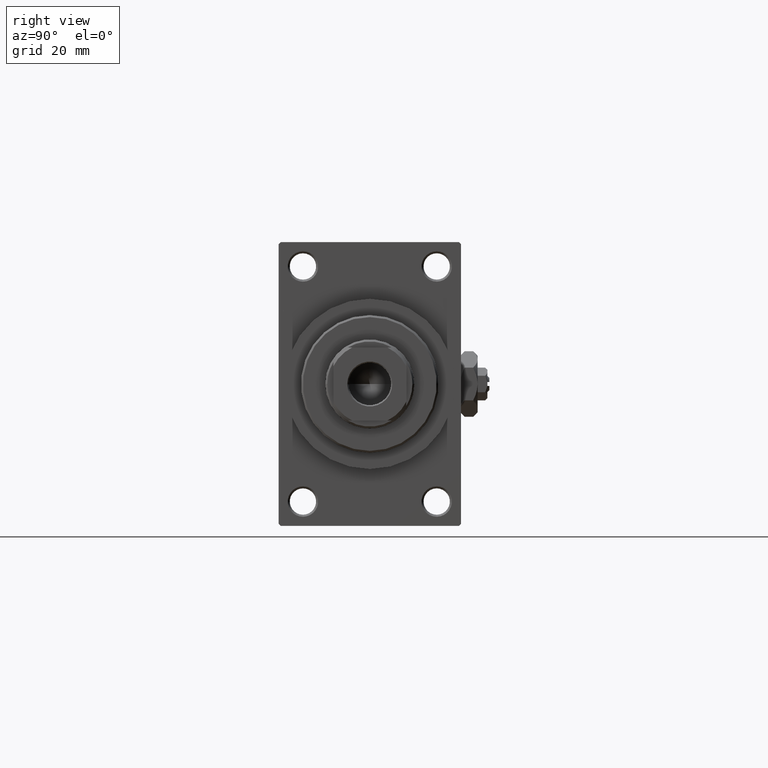
[diagram: clean part render]
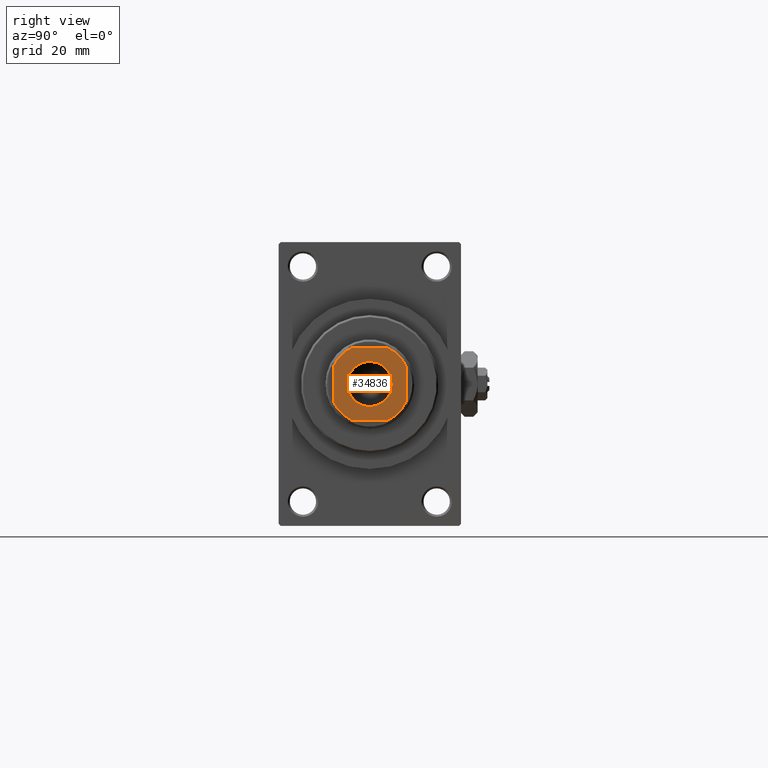
[diagram: same view with one face highlighted and labeled with its STEP entity id]
A machine part, right view. The second image highlights one B-rep face of the part: STEP entity #34836.
In plain terms, the highlighted planar face has unit normal (1, 0, 0).
Its self-contained STEP definition (entity closure, byte-faithful):
#37 = DIRECTION ( 'NONE',  ( 1.000000000000000000, 0.000000000000000000, 0.000000000000000000 ) ) ;
#1003 = LINE ( 'NONE', #3757, #27282 ) ;
#1005 = CARTESIAN_POINT ( 'NONE',  ( -9.000000000000003553, 8.999999999999998224, 123.0000000000000000 ) ) ;
#1296 = ORIENTED_EDGE ( 'NONE', *, *, #30082, .T. ) ;
#1401 = PLANE ( 'NONE',  #14253 ) ;
#1424 = VERTEX_POINT ( 'NONE', #39526 ) ;
#1468 = ORIENTED_EDGE ( 'NONE', *, *, #8844, .T. ) ;
#1906 = CARTESIAN_POINT ( 'NONE',  ( 5.550000000000013145, 0.000000000000000000, 123.0000000000000000 ) ) ;
#1967 = EDGE_CURVE ( 'NONE', #22650, #16876, #33019, .T. ) ;
#2974 = ORIENTED_EDGE ( 'NONE', *, *, #16427, .T. ) ;
#3038 = AXIS2_PLACEMENT_3D ( 'NONE', #11513, #26643, #37824 ) ;
#3076 = CIRCLE ( 'NONE', #6236, 9.999999999999998224 ) ;
#3757 = CARTESIAN_POINT ( 'NONE',  ( -9.000000000000001776, -9.000000000000001776, 123.0000000000000000 ) ) ;
#4542 = CARTESIAN_POINT ( 'NONE',  ( 8.999999999999998224, -4.358898943540672200, 123.0000000000000000 ) ) ;
#5049 = VERTEX_POINT ( 'NONE', #1906 ) ;
#5947 = CARTESIAN_POINT ( 'NONE',  ( 8.999999999999996447, 8.999999999999998224, 123.0000000000000000 ) ) ;
#6236 = AXIS2_PLACEMENT_3D ( 'NONE', #42610, #27695, #39367 ) ;
#6262 = VECTOR ( 'NONE', #18333, 1000.000000000000000 ) ;
#7033 = ORIENTED_EDGE ( 'NONE', *, *, #29931, .T. ) ;
#8844 = EDGE_CURVE ( 'NONE', #26649, #22290, #34792, .T. ) ;
#10102 = VERTEX_POINT ( 'NONE', #30226 ) ;
#10460 = VECTOR ( 'NONE', #41767, 1000.000000000000000 ) ;
#10630 = DIRECTION ( 'NONE',  ( -0.000000000000000000, 0.000000000000000000, 1.000000000000000000 ) ) ;
#11395 = CARTESIAN_POINT ( 'NONE',  ( 8.999999999999998224, 4.358898943540600257, 123.0000000000000000 ) ) ;
#11513 = CARTESIAN_POINT ( 'NONE',  ( 0.000000000000000000, 0.000000000000000000, 123.0000000000000000 ) ) ;
#11765 = CIRCLE ( 'NONE', #3038, 9.999999999999998224 ) ;
#12597 = DIRECTION ( 'NONE',  ( -0.000000000000000000, 0.000000000000000000, 1.000000000000000000 ) ) ;
#13711 = CARTESIAN_POINT ( 'NONE',  ( -9.000000000000003553, 8.999999999999998224, 123.0000000000000000 ) ) ;
#13947 = CIRCLE ( 'NONE', #19436, 5.550000000000013145 ) ;
#14253 = AXIS2_PLACEMENT_3D ( 'NONE', #46612, #12597, #20013 ) ;
#14356 = CARTESIAN_POINT ( 'NONE',  ( 0.000000000000000000, 0.000000000000000000, 123.0000000000000000 ) ) ;
#15703 = EDGE_LOOP ( 'NONE', ( #24607, #15999 ) ) ;
#15999 = ORIENTED_EDGE ( 'NONE', *, *, #22357, .T. ) ;
#16310 = FACE_OUTER_BOUND ( 'NONE', #41892, .T. ) ;
#16427 = EDGE_CURVE ( 'NONE', #43551, #28873, #47975, .T. ) ;
#16575 = CIRCLE ( 'NONE', #41975, 5.550000000000013145 ) ;
#16579 = CARTESIAN_POINT ( 'NONE',  ( 4.358898943540597593, 8.999999999999998224, 123.0000000000000000 ) ) ;
#16876 = VERTEX_POINT ( 'NONE', #11395 ) ;
#17200 = ORIENTED_EDGE ( 'NONE', *, *, #28615, .T. ) ;
#17489 = DIRECTION ( 'NONE',  ( 1.000000000000000000, 0.000000000000000000, 0.000000000000000000 ) ) ;
#17509 = DIRECTION ( 'NONE',  ( 1.000000000000000000, 0.000000000000000000, 0.000000000000000000 ) ) ;
#17994 = CARTESIAN_POINT ( 'NONE',  ( 0.000000000000000000, 0.000000000000000000, 123.0000000000000000 ) ) ;
#18333 = DIRECTION ( 'NONE',  ( -1.927470528863119049E-16, 1.000000000000000000, -0.000000000000000000 ) ) ;
#19436 = AXIS2_PLACEMENT_3D ( 'NONE', #28663, #29653, #17489 ) ;
#19992 = EDGE_CURVE ( 'NONE', #1424, #10102, #1003, .T. ) ;
#20013 = DIRECTION ( 'NONE',  ( 1.000000000000000000, 0.000000000000000000, 0.000000000000000000 ) ) ;
#20528 = CIRCLE ( 'NONE', #39472, 9.999999999999966249 ) ;
#22290 = VERTEX_POINT ( 'NONE', #34897 ) ;
#22357 = EDGE_CURVE ( 'NONE', #34539, #5049, #13947, .T. ) ;
#22650 = VERTEX_POINT ( 'NONE', #4542 ) ;
#24607 = ORIENTED_EDGE ( 'NONE', *, *, #31163, .T. ) ;
#25260 = CIRCLE ( 'NONE', #33219, 9.999999999999996447 ) ;
#25270 = DIRECTION ( 'NONE',  ( 1.000000000000000000, 0.000000000000000000, 0.000000000000000000 ) ) ;
#26643 = DIRECTION ( 'NONE',  ( -0.000000000000000000, 0.000000000000000000, 1.000000000000000000 ) ) ;
#26649 = VERTEX_POINT ( 'NONE', #16579 ) ;
#27282 = VECTOR ( 'NONE', #37, 1000.000000000000000 ) ;
#27695 = DIRECTION ( 'NONE',  ( -0.000000000000000000, 0.000000000000000000, 1.000000000000000000 ) ) ;
#28031 = CARTESIAN_POINT ( 'NONE',  ( -5.550000000000013145, 6.796789735267826558E-16, 123.0000000000000000 ) ) ;
#28615 = EDGE_CURVE ( 'NONE', #28873, #1424, #11765, .T. ) ;
#28663 = CARTESIAN_POINT ( 'NONE',  ( 0.000000000000000000, 0.000000000000000000, 123.0000000000000000 ) ) ;
#28873 = VERTEX_POINT ( 'NONE', #45721 ) ;
#29374 = ORIENTED_EDGE ( 'NONE', *, *, #30846, .T. ) ;
#29653 = DIRECTION ( 'NONE',  ( 0.000000000000000000, -0.000000000000000000, -1.000000000000000000 ) ) ;
#29669 = VECTOR ( 'NONE', #40283, 1000.000000000000000 ) ;
#29931 = EDGE_CURVE ( 'NONE', #22290, #43551, #25260, .T. ) ;
#30082 = EDGE_CURVE ( 'NONE', #10102, #22650, #3076, .T. ) ;
#30226 = CARTESIAN_POINT ( 'NONE',  ( 4.358898943540667759, -9.000000000000001776, 123.0000000000000000 ) ) ;
#30846 = EDGE_CURVE ( 'NONE', #16876, #26649, #20528, .T. ) ;
#31163 = EDGE_CURVE ( 'NONE', #5049, #34539, #16575, .T. ) ;
#32670 = DIRECTION ( 'NONE',  ( 0.000000000000000000, -0.000000000000000000, -1.000000000000000000 ) ) ;
#32728 = CARTESIAN_POINT ( 'NONE',  ( 0.000000000000000000, 0.000000000000000000, 123.0000000000000000 ) ) ;
#33019 = LINE ( 'NONE', #5947, #6262 ) ;
#33219 = AXIS2_PLACEMENT_3D ( 'NONE', #32728, #10630, #33221 ) ;
#33221 = DIRECTION ( 'NONE',  ( 1.000000000000000000, 0.000000000000000000, 0.000000000000000000 ) ) ;
#34539 = VERTEX_POINT ( 'NONE', #28031 ) ;
#34792 = LINE ( 'NONE', #1005, #10460 ) ;
#34836 = ADVANCED_FACE ( 'NONE', ( #35673, #16310 ), #1401, .T. ) ;
#34897 = CARTESIAN_POINT ( 'NONE',  ( -4.358898943540671311, 8.999999999999998224, 123.0000000000000000 ) ) ;
#35673 = FACE_BOUND ( 'NONE', #15703, .T. ) ;
#36206 = DIRECTION ( 'NONE',  ( -0.000000000000000000, 0.000000000000000000, 1.000000000000000000 ) ) ;
#36437 = CARTESIAN_POINT ( 'NONE',  ( -9.000000000000003553, 4.358898943540662430, 123.0000000000000000 ) ) ;
#37824 = DIRECTION ( 'NONE',  ( 1.000000000000000000, 0.000000000000000000, 0.000000000000000000 ) ) ;
#39367 = DIRECTION ( 'NONE',  ( 1.000000000000000000, 0.000000000000000000, 0.000000000000000000 ) ) ;
#39472 = AXIS2_PLACEMENT_3D ( 'NONE', #14356, #36206, #25270 ) ;
#39526 = CARTESIAN_POINT ( 'NONE',  ( -4.358898943540667759, -9.000000000000001776, 123.0000000000000000 ) ) ;
#40283 = DIRECTION ( 'NONE',  ( 9.637352644315595243E-17, -1.000000000000000000, 0.000000000000000000 ) ) ;
#41767 = DIRECTION ( 'NONE',  ( -1.000000000000000000, -0.000000000000000000, -0.000000000000000000 ) ) ;
#41892 = EDGE_LOOP ( 'NONE', ( #45306, #29374, #1468, #7033, #2974, #17200, #46926, #1296 ) ) ;
#41975 = AXIS2_PLACEMENT_3D ( 'NONE', #17994, #32670, #17509 ) ;
#42610 = CARTESIAN_POINT ( 'NONE',  ( 0.000000000000000000, 0.000000000000000000, 123.0000000000000000 ) ) ;
#43551 = VERTEX_POINT ( 'NONE', #36437 ) ;
#45306 = ORIENTED_EDGE ( 'NONE', *, *, #1967, .T. ) ;
#45721 = CARTESIAN_POINT ( 'NONE',  ( -9.000000000000003553, -4.358898943540665094, 123.0000000000000000 ) ) ;
#46612 = CARTESIAN_POINT ( 'NONE',  ( 0.000000000000000000, 0.000000000000000000, 123.0000000000000000 ) ) ;
#46926 = ORIENTED_EDGE ( 'NONE', *, *, #19992, .T. ) ;
#47975 = LINE ( 'NONE', #13711, #29669 ) ;